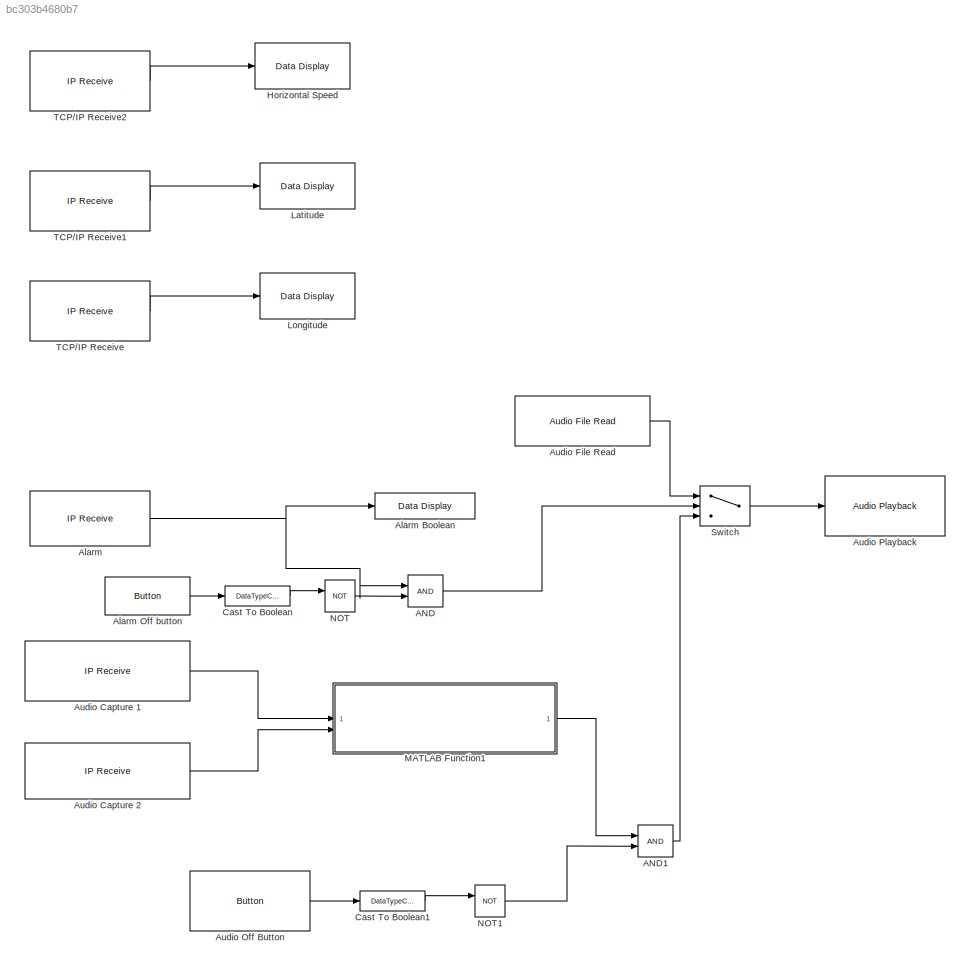
MODEL slx_bc303b4680b7
KIND model
CONFIG AbsTol = auto
CONFIG EnableMultiTasking = off
CONFIG FixedStep = auto
CONFIG MaxStep = auto
CONFIG MinStep = auto
CONFIG RelTol = 1e-3
CONFIG SampleTimeConstraint = Unconstrained
CONFIG SolverName = FixedStepDiscrete
CONFIG StartTime = 0.0
CONFIG StopTime = inf
BLOCK [Logic] AND
  AllPortsSameDT = off
  IconShape = distinctive
  OutDataTypeStr = boolean
BLOCK [Logic] AND1
  AllPortsSameDT = off
  IconShape = distinctive
  OutDataTypeStr = boolean
BLOCK [Reference] Alarm  REF=androidcommunicationlib/TCP//IP Receive
  SourceBlock = androidcommunicationlib/TCP//IP Receive
  SourceType = codertarget.internal.androidTCPReceive
BLOCK [Reference] Alarm Boolean  REF=androiduilib/Data Display
  SourceBlock = androiduilib/Data Display
  SourceType = codertarget.internal.androidDataDisplay
BLOCK [Reference] Alarm Off button  REF=androiduilib/Button
  SourceBlock = androiduilib/Button
  SourceType = codertarget.internal.androidButton
BLOCK [Reference] Audio Capture 1  REF=androidcommunicationlib/TCP//IP Receive
  SourceBlock = androidcommunicationlib/TCP//IP Receive
  SourceType = codertarget.internal.androidTCPReceive
BLOCK [Reference] Audio Capture 2  REF=androidcommunicationlib/TCP//IP Receive
  SourceBlock = androidcommunicationlib/TCP//IP Receive
  SourceType = codertarget.internal.androidTCPReceive
BLOCK [Reference] Audio File Read  REF=androidaudiovideolib/Audio File Read
  SourceBlock = androidaudiovideolib/Audio File Read
  SourceType = codertarget.internal.androidAudioFileRead
BLOCK [Reference] Audio Off Button  REF=androiduilib/Button
  SourceBlock = androiduilib/Button
  SourceType = codertarget.internal.androidButton
BLOCK [Reference] Audio Playback  REF=androidaudiovideolib/Audio Playback
  SourceBlock = androidaudiovideolib/Audio Playback
  SourceType = codertarget.internal.androidAudioPlayback
BLOCK [DataTypeConversion] Cast To Boolean
  OutDataTypeStr = boolean
  RndMeth = Floor
  SaturateOnIntegerOverflow = off
BLOCK [DataTypeConversion] Cast To Boolean1
  OutDataTypeStr = boolean
  RndMeth = Floor
  SaturateOnIntegerOverflow = off
BLOCK [Reference] Horizontal Speed  REF=androiduilib/Data Display
  SourceBlock = androiduilib/Data Display
  SourceType = codertarget.internal.androidDataDisplay
BLOCK [Reference] Latitude  REF=androiduilib/Data Display
  SourceBlock = androiduilib/Data Display
  SourceType = codertarget.internal.androidDataDisplay
BLOCK [Reference] Longitude  REF=androiduilib/Data Display
  SourceBlock = androiduilib/Data Display
  SourceType = codertarget.internal.androidDataDisplay
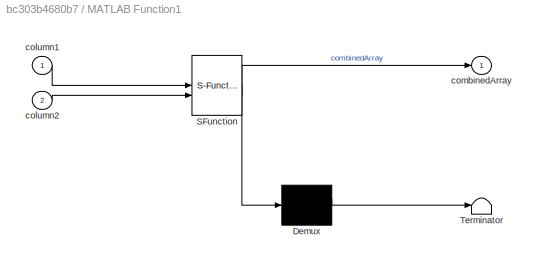
BLOCK [SubSystem] MATLAB Function1
  ErrorFcn = Stateflow.Translate.translate
  LibrarySourceBlock = simulink/User-Defined\nFunctions/MATLAB Function
  PermitHierarchicalResolution = ExplicitOnly
  SFBlockType = MATLAB Function
  TreatAsAtomicUnit = on
BLOCK [Demux] MATLAB Function1/ Demux 
  Outputs = 1
BLOCK [S-Function] MATLAB Function1/ SFunction 
  EnableBusSupport = on
  FunctionName = sf_sfun
  PortCounts = [2 2]
  SFcnIsStateOwnerBlock = off
  SFunctionDeploymentMode = off
  Tag = Stateflow S-Function 1
BLOCK [Terminator] MATLAB Function1/ Terminator 
BLOCK [Inport] MATLAB Function1/column1
BLOCK [Inport] MATLAB Function1/column2
  Port = 2
BLOCK [Outport] MATLAB Function1/combinedArray
BLOCK [Logic] NOT
  AllPortsSameDT = off
  IconShape = distinctive
  Operator = NOT
  OutDataTypeStr = boolean
BLOCK [Logic] NOT1
  AllPortsSameDT = off
  IconShape = distinctive
  Operator = NOT
  OutDataTypeStr = boolean
BLOCK [Switch] Switch
  Criteria = u2 > Threshold
  InputSameDT = off
  OutDataTypeStr = int16
  SaturateOnIntegerOverflow = off
BLOCK [Reference] TCP//IP Receive  REF=androidcommunicationlib/TCP//IP Receive
  SourceBlock = androidcommunicationlib/TCP//IP Receive
  SourceType = codertarget.internal.androidTCPReceive
BLOCK [Reference] TCP//IP Receive1  REF=androidcommunicationlib/TCP//IP Receive
  SourceBlock = androidcommunicationlib/TCP//IP Receive
  SourceType = codertarget.internal.androidTCPReceive
BLOCK [Reference] TCP//IP Receive2  REF=androidcommunicationlib/TCP//IP Receive
  SourceBlock = androidcommunicationlib/TCP//IP Receive
  SourceType = codertarget.internal.androidTCPReceive
LINE AND1:1 -> Switch:3
LINE AND:1 -> Switch:2
LINE Alarm Off button:1 -> Cast To Boolean:1
NET Alarm:1 -> AND:1, Alarm Boolean:1
LINE Audio Capture 1:1 -> MATLAB Function1:1
LINE Audio Capture 2:1 -> MATLAB Function1:2
LINE Audio File Read:1 -> Switch:1
LINE Audio Off Button:1 -> Cast To Boolean1:1
LINE Cast To Boolean1:1 -> NOT1:1
LINE Cast To Boolean:1 -> NOT:1
LINE MATLAB Function1:1 -> AND1:1
LINE NOT1:1 -> AND1:2
LINE NOT:1 -> AND:2
LINE Switch:1 -> Audio Playback:1
LINE TCP//IP Receive1:1 -> Latitude:1
LINE TCP//IP Receive2:1 -> Horizontal Speed:1
LINE TCP//IP Receive:1 -> Longitude:1
note: NET lines group one-source signal fan-out (src -> all destinations, sorted); 1:1 wires keep LINE
CHART MATLAB Function1 states=1 transitions=1
  STATE_LABEL 'eML_blk_kernel()'
  STATE_LABEL 'SCRIPT:\nfunction combinedArray = combineColumns(column1, column2)\n\n    % Combine the two columns into an Nx2 array\n    combinedArray = [column1(:), column2(:)];\nend'
CHART  states=0 transitions=0
